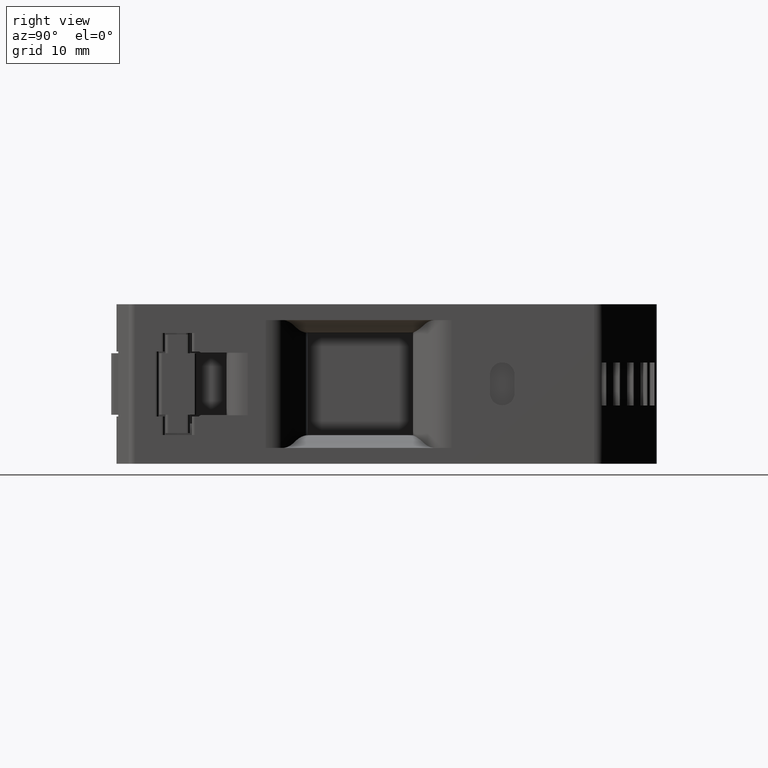
[diagram: clean part render]
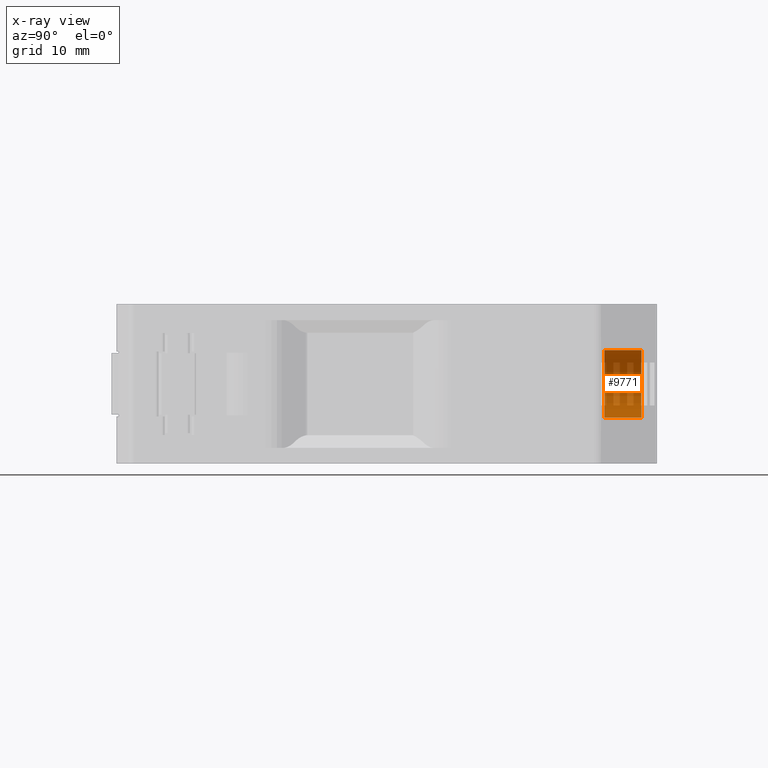
[diagram: x-ray — body ghosted, one internal face saturated and labeled with its STEP entity id]
A machine part, right view, then the same camera in x-ray: the body is ghosted and one INTERNAL B-rep face — a face not visible from any outside direction — is saturated and labeled: STEP entity #9771.
In plain terms, the highlighted cylindrical surface (edge-blend (fillet) strip) has radius 5.5 mm, axis along (-0, -1, -0).
Its self-contained STEP definition (entity closure, byte-faithful):
#184 = LINE ( 'NONE', #185, #16510 ) ;
#185 = CARTESIAN_POINT ( 'NONE',  ( -11.41505105979430600, 17.56129512537451700, -16.75450991171499000 ) ) ;
#186 = DIRECTION ( 'NONE',  ( -3.078198582463174700E-031, -1.000000000000000000, -3.469446951953610200E-015 ) ) ;
#209 = CARTESIAN_POINT ( 'NONE',  ( -11.41505105979430600, 18.06129512537450000, -11.25450991171543800 ) ) ;
#225 = DIRECTION ( 'NONE',  ( 3.078198582463174700E-031, 1.000000000000000000, 3.469446951953610200E-015 ) ) ;
#269 = DIRECTION ( 'NONE',  ( 0.0000000000000000000, 3.154042683594452400E-015, -1.000000000000000000 ) ) ;
#637 = LINE ( 'NONE', #648, #16559 ) ;
#648 = CARTESIAN_POINT ( 'NONE',  ( -11.41505105979430600, 17.56129512537448200, -5.754509911715891800 ) ) ;
#683 = DIRECTION ( 'NONE',  ( -3.078198582463174700E-031, -1.000000000000000000, -3.469446951953610200E-015 ) ) ;
#3329 = DIRECTION ( 'NONE',  ( -3.078198582463174700E-031, -1.000000000000000000, -3.469446951953610200E-015 ) ) ;
#3350 = CARTESIAN_POINT ( 'NONE',  ( -11.41505105979430600, 24.06129512537450700, -11.25450991171541800 ) ) ;
#3357 = DIRECTION ( 'NONE',  ( 0.0000000000000000000, 3.154042683594452400E-015, -1.000000000000000000 ) ) ;
#5839 = EDGE_LOOP ( 'NONE', ( #6263, #6285, #6295, #6279 ) ) ;
#6263 = ORIENTED_EDGE ( 'NONE', *, *, #10261, .F. ) ;
#6279 = ORIENTED_EDGE ( 'NONE', *, *, #10599, .F. ) ;
#6285 = ORIENTED_EDGE ( 'NONE', *, *, #10693, .T. ) ;
#6295 = ORIENTED_EDGE ( 'NONE', *, *, #10616, .F. ) ;
#9669 = AXIS2_PLACEMENT_3D ( 'NONE', #14943, #14981, #14970 ) ;
#9771 = ADVANCED_FACE ( 'NONE', ( #14965 ), #14980, .F. ) ;
#10261 = EDGE_CURVE ( 'NONE', #20609, #20636, #16478, .T. ) ;
#10599 = EDGE_CURVE ( 'NONE', #20636, #20672, #184, .T. ) ;
#10616 = EDGE_CURVE ( 'NONE', #20672, #20638, #16518, .T. ) ;
#10693 = EDGE_CURVE ( 'NONE', #20609, #20638, #637, .T. ) ;
#14943 = CARTESIAN_POINT ( 'NONE',  ( -11.41505105979430600, 17.56129512537450000, -11.25450991171544000 ) ) ;
#14965 = FACE_OUTER_BOUND ( 'NONE', #5839, .T. ) ;
#14970 = DIRECTION ( 'NONE',  ( 0.0000000000000000000, 3.154042683594453600E-015, -1.000000000000000000 ) ) ;
#14980 = CYLINDRICAL_SURFACE ( 'NONE', #9669, 5.499999999999548800 ) ;
#14981 = DIRECTION ( 'NONE',  ( -3.078198582463174700E-031, -1.000000000000000000, -3.469446951953610200E-015 ) ) ;
#16478 = CIRCLE ( 'NONE', #16481, 5.499999999999550600 ) ;
#16481 = AXIS2_PLACEMENT_3D ( 'NONE', #3350, #3329, #3357 ) ;
#16510 = VECTOR ( 'NONE', #186, 1000.000000000000000 ) ;
#16518 = CIRCLE ( 'NONE', #16519, 5.499999999999550600 ) ;
#16519 = AXIS2_PLACEMENT_3D ( 'NONE', #209, #225, #269 ) ;
#16559 = VECTOR ( 'NONE', #683, 1000.000000000000000 ) ;
#16683 = CARTESIAN_POINT ( 'NONE',  ( -11.41505105979430600, 24.06129512537448900, -5.754509911715868700 ) ) ;
#16692 = CARTESIAN_POINT ( 'NONE',  ( -11.41505105979430600, 24.06129512537452400, -16.75450991171496900 ) ) ;
#16712 = CARTESIAN_POINT ( 'NONE',  ( -11.41505105979430600, 18.06129512537448200, -5.754509911715890000 ) ) ;
#16875 = CARTESIAN_POINT ( 'NONE',  ( -11.41505105979430600, 18.06129512537451700, -16.75450991171499000 ) ) ;
#20609 = VERTEX_POINT ( 'NONE', #16683 ) ;
#20636 = VERTEX_POINT ( 'NONE', #16692 ) ;
#20638 = VERTEX_POINT ( 'NONE', #16712 ) ;
#20672 = VERTEX_POINT ( 'NONE', #16875 ) ;